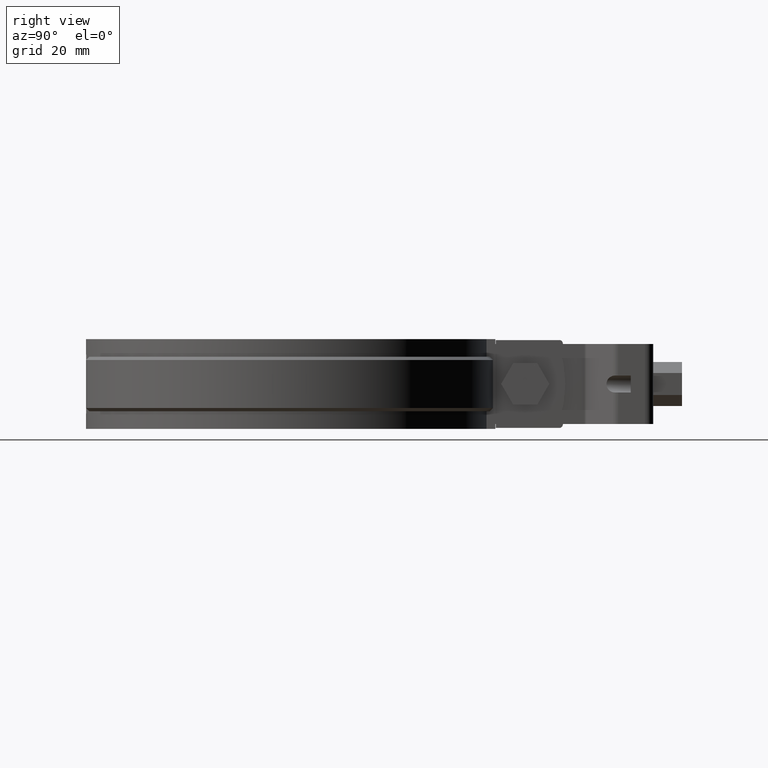
[diagram: clean part render]
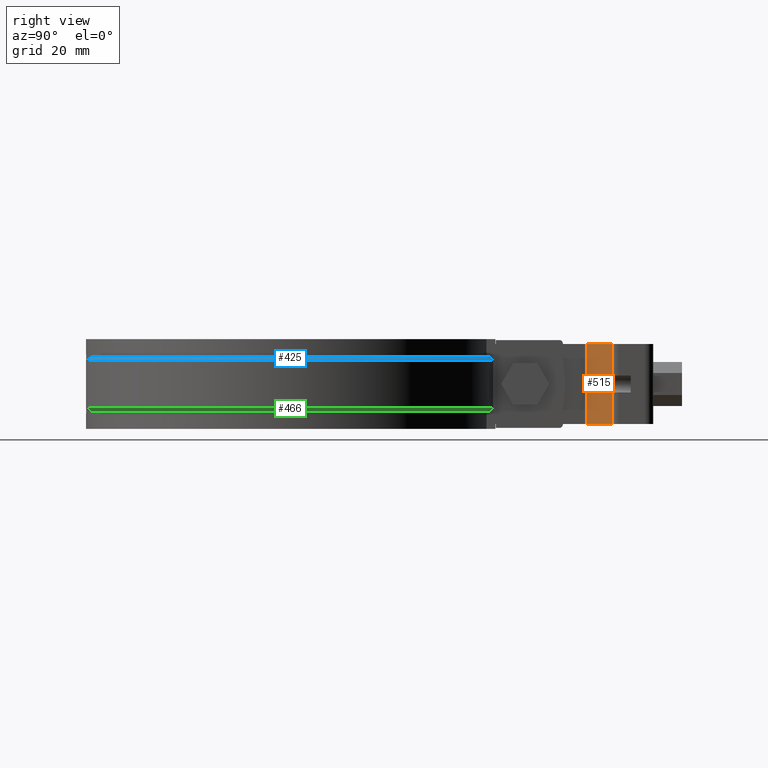
[diagram: same view with three faces highlighted in distinct colors, each labeled with its STEP entity id]
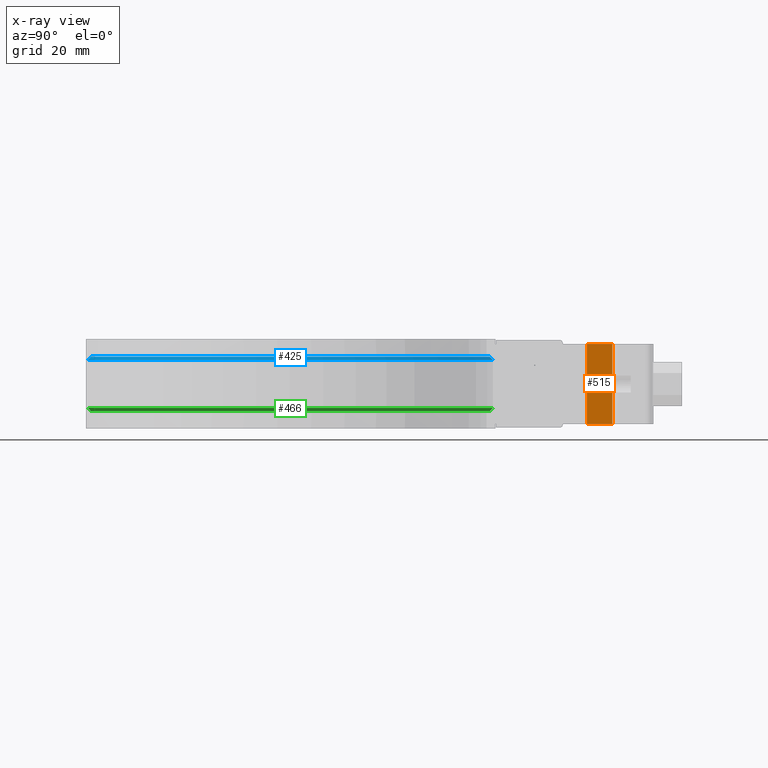
[diagram: x-ray of the same camera — body ghosted, the three highlighted faces saturated]
A machine part, right view with three faces highlighted in distinct colors.
The next image is the same camera in x-ray (body ghosted, the three faces saturated) — at least one of them is partly hidden behind the body in this view.
Their STEP definitions:

[orange] entity #515 — the highlighted planar face has unit normal (0.6983, -0.7158, 0).
#515 = ADVANCED_FACE( '', ( #1013 ), #1014, .T. );
#1013 = FACE_OUTER_BOUND( '', #2270, .T. );
#1014 = PLANE( '', #2271 );
#2270 = EDGE_LOOP( '', ( #4597, #4598, #4599, #4600, #4601, #4602 ) );
#2271 = AXIS2_PLACEMENT_3D( '', #4603, #4604, #4605 );
#4597 = ORIENTED_EDGE( '', *, *, #6400, .T. );
#4598 = ORIENTED_EDGE( '', *, *, #6480, .F. );
#4599 = ORIENTED_EDGE( '', *, *, #6412, .T. );
#4600 = ORIENTED_EDGE( '', *, *, #6421, .F. );
#4601 = ORIENTED_EDGE( '', *, *, #6368, .F. );
#4602 = ORIENTED_EDGE( '', *, *, #6481, .F. );
#4603 = CARTESIAN_POINT( '', ( 3.90167616445234, 94.2571201598930, 12.4999999991308 ) );
#4604 = DIRECTION( '', ( 0.698323835530682, -0.715781964518328, 5.28390761934007E-012 ) );
#4605 = DIRECTION( '', ( 0.000000000000000, -7.38200720507924E-012, -1.00000000000000 ) );
#6368 = EDGE_CURVE( '', #7502, #7504, #7505, .F. );
#6400 = EDGE_CURVE( '', #7566, #7564, #7567, .T. );
#6412 = EDGE_CURVE( '', #7588, #7589, #7590, .F. );
#6421 = EDGE_CURVE( '', #7504, #7589, #7605, .T. );
#6480 = EDGE_CURVE( '', #7588, #7564, #7689, .T. );
#6481 = EDGE_CURVE( '', #7566, #7502, #7690, .T. );
#7502 = VERTEX_POINT( '', #10909 );
#7504 = VERTEX_POINT( '', #10911 );
#7505 = LINE( '', #10912, #10913 );
#7564 = VERTEX_POINT( '', #10989 );
#7566 = VERTEX_POINT( '', #10991 );
#7567 = LINE( '', #10992, #10993 );
#7588 = VERTEX_POINT( '', #11020 );
#7589 = VERTEX_POINT( '', #11021 );
#7590 = ELLIPSE( '', #11022, 3.70224472166266, 2.64999999999997 );
#7605 = LINE( '', #11056, #11057 );
#7689 = LINE( '', #11213, #11214 );
#7690 = LINE( '', #11215, #11216 );
#10909 = CARTESIAN_POINT( '', ( 3.30167616445248, 93.6717543333033, 12.4999999991349 ) );
#10911 = CARTESIAN_POINT( '', ( 11.4656419723602, 101.636598655633, 12.4999999990788 ) );
#10912 = CARTESIAN_POINT( '', ( 5.72823783053747, 96.0391314590352, 12.4999999991183 ) );
#10913 = VECTOR( '', #12769, 1000.00000000000 );
#10989 = CARTESIAN_POINT( '', ( 11.4656419723644, 101.636598655452, -12.5000000009212 ) );
#10991 = CARTESIAN_POINT( '', ( 3.30167616445671, 93.6717543331228, -12.5000000008651 ) );
#10992 = CARTESIAN_POINT( '', ( 3.90167616445657, 94.2571201597126, -12.5000000008692 ) );
#10993 = VECTOR( '', #12829, 1000.00000000000 );
#11020 = CARTESIAN_POINT( '', ( 11.4656419723628, 101.636598655524, -2.53126104721945 ) );
#11021 = CARTESIAN_POINT( '', ( 11.4656419723620, 101.636598655561, 2.53126104537715 ) );
#11022 = AXIS2_PLACEMENT_3D( '', #12851, #12852, #12853 );
#11056 = CARTESIAN_POINT( '', ( 11.4656419723602, 101.636598655633, 12.4999999990788 ) );
#11057 = VECTOR( '', #12866, 1000.00000000000 );
#11213 = CARTESIAN_POINT( '', ( 11.4656419723602, 101.636598655633, 12.4999999990788 ) );
#11214 = VECTOR( '', #12951, 1000.00000000000 );
#11215 = CARTESIAN_POINT( '', ( 3.30167616445248, 93.6717543333033, 12.4999999991349 ) );
#11216 = VECTOR( '', #12952, 1000.00000000000 );
#12769 = DIRECTION( '', ( -0.715781964518328, -0.698323835530682, 4.91890702135917E-012 ) );
#12829 = DIRECTION( '', ( 0.715781964518328, 0.698323835530682, -4.91890702135917E-012 ) );
#12851 = CARTESIAN_POINT( '', ( 12.2499999999828, 102.401825964176, -9.26553833657811E-010 ) );
#12852 = DIRECTION( '', ( 0.698323835530682, -0.715781964518328, 5.28390761934007E-012 ) );
#12853 = DIRECTION( '', ( -0.715781964518328, -0.698323835530682, 4.91890702135917E-012 ) );
#12866 = DIRECTION( '', ( 1.69013704295889E-013, -7.21711579387894E-012, -1.00000000000000 ) );
#12951 = DIRECTION( '', ( 1.69013704295889E-013, -7.21711579387894E-012, -1.00000000000000 ) );
#12952 = DIRECTION( '', ( -1.69074934613580E-013, 7.21705605698639E-012, 1.00000000000000 ) );

[blue] entity #425 — the highlighted conical surface has half-angle 45 deg.
#425 = ADVANCED_FACE( '', ( #824 ), #825, .T. );
#824 = FACE_OUTER_BOUND( '', #1895, .T. );
#825 = CONICAL_SURFACE( '', #1896, 64.6500000000000, 0.785398163397450 );
#1895 = EDGE_LOOP( '', ( #3809, #3810, #3811, #3812 ) );
#1896 = AXIS2_PLACEMENT_3D( '', #3813, #3814, #3815 );
#3809 = ORIENTED_EDGE( '', *, *, #6236, .F. );
#3810 = ORIENTED_EDGE( '', *, *, #6237, .F. );
#3811 = ORIENTED_EDGE( '', *, *, #6238, .F. );
#3812 = ORIENTED_EDGE( '', *, *, #6239, .F. );
#3813 = CARTESIAN_POINT( '', ( 4.33680868994202E-015, 5.55111512312578E-014, 7.50000000000000 ) );
#3814 = DIRECTION( '', ( 0.000000000000000, 0.000000000000000, -1.00000000000000 ) );
#3815 = DIRECTION( '', ( -1.00000000000000, 0.000000000000000, 0.000000000000000 ) );
#6236 = EDGE_CURVE( '', #7295, #7296, #7297, .F. );
#6237 = EDGE_CURVE( '', #7298, #7295, #7299, .T. );
#6238 = EDGE_CURVE( '', #7300, #7298, #7301, .T. );
#6239 = EDGE_CURVE( '', #7296, #7300, #7302, .T. );
#7295 = VERTEX_POINT( '', #10511 );
#7296 = VERTEX_POINT( '', #10512 );
#7297 = B_SPLINE_CURVE_WITH_KNOTS( '', 3, ( #10513, #10514, #10515, #10516 ), .UNSPECIFIED., .F., .F., ( 4, 4 ), ( 707.015549679056, 707.016967009631 ), .UNSPECIFIED. );
#7298 = VERTEX_POINT( '', #10517 );
#7299 = CIRCLE( '', #10518, 63.6500000000000 );
#7300 = VERTEX_POINT( '', #10519 );
#7301 = LINE( '', #10520, #10521 );
#7302 = CIRCLE( '', #10522, 64.6500000000000 );
#10511 = CARTESIAN_POINT( '', ( 6.00000000000001, 63.3665724179556, 8.50000000000000 ) );
#10512 = CARTESIAN_POINT( '', ( 6.00000000000001, 64.3709756023630, 7.50000000000000 ) );
#10513 = CARTESIAN_POINT( '', ( 6.00000000000001, 64.3709756023961, 7.49999999996705 ) );
#10514 = CARTESIAN_POINT( '', ( 6.00000000000001, 64.0361859211582, 7.83334475484544 ) );
#10515 = CARTESIAN_POINT( '', ( 6.00000000000001, 63.7013850392701, 8.16667826842152 ) );
#10516 = CARTESIAN_POINT( '', ( 6.00000000000001, 63.3665724179738, 8.49999999998187 ) );
#10517 = CARTESIAN_POINT( '', ( 17.8834198706277, -61.0860523665659, 8.50000000000000 ) );
#10518 = AXIS2_PLACEMENT_3D( '', #12564, #12565, #12566 );
#10519 = CARTESIAN_POINT( '', ( 18.1643848332456, -62.0457703927492, 7.50000000000000 ) );
#10520 = CARTESIAN_POINT( '', ( 18.1643848332456, -62.0457703927492, 7.50000000000000 ) );
#10521 = VECTOR( '', #12567, 1000.00000000000 );
#10522 = AXIS2_PLACEMENT_3D( '', #12568, #12569, #12570 );
#12564 = CARTESIAN_POINT( '', ( 4.33680868994202E-015, 5.55111512312578E-014, 8.50000000000000 ) );
#12565 = DIRECTION( '', ( 0.000000000000000, 0.000000000000000, 1.00000000000000 ) );
#12566 = DIRECTION( '', ( 1.00000000000000, 0.000000000000000, 0.000000000000000 ) );
#12567 = DIRECTION( '', ( -0.198672230342925, 0.678623124341169, 0.707106781186546 ) );
#12568 = CARTESIAN_POINT( '', ( 4.33680868994202E-015, 5.55111512312578E-014, 7.50000000000000 ) );
#12569 = DIRECTION( '', ( 0.000000000000000, 0.000000000000000, -1.00000000000000 ) );
#12570 = DIRECTION( '', ( -1.00000000000000, 0.000000000000000, 0.000000000000000 ) );

[green] entity #466 — the highlighted conical surface has half-angle 45 deg.
#466 = ADVANCED_FACE( '', ( #908 ), #909, .T. );
#908 = FACE_OUTER_BOUND( '', #2165, .T. );
#909 = CONICAL_SURFACE( '', #2166, 63.6500000000000, 0.785398163397449 );
#2165 = EDGE_LOOP( '', ( #4164, #4165, #4166, #4167 ) );
#2166 = AXIS2_PLACEMENT_3D( '', #4168, #4169, #4170 );
#4164 = ORIENTED_EDGE( '', *, *, #6336, .F. );
#4165 = ORIENTED_EDGE( '', *, *, #6339, .F. );
#4166 = ORIENTED_EDGE( '', *, *, #6340, .F. );
#4167 = ORIENTED_EDGE( '', *, *, #6322, .F. );
#4168 = CARTESIAN_POINT( '', ( 4.33680868994202E-015, 5.55111512312578E-014, -8.50000000000000 ) );
#4169 = DIRECTION( '', ( 0.000000000000000, 0.000000000000000, 1.00000000000000 ) );
#4170 = DIRECTION( '', ( 1.00000000000000, 0.000000000000000, 0.000000000000000 ) );
#6322 = EDGE_CURVE( '', #7430, #7426, #7432, .F. );
#6336 = EDGE_CURVE( '', #7450, #7430, #7452, .F. );
#6339 = EDGE_CURVE( '', #7455, #7450, #7456, .T. );
#6340 = EDGE_CURVE( '', #7426, #7455, #7457, .T. );
#7426 = VERTEX_POINT( '', #10801 );
#7430 = VERTEX_POINT( '', #10805 );
#7432 = CIRCLE( '', #10808, 63.6500000000000 );
#7450 = VERTEX_POINT( '', #10834 );
#7452 = B_SPLINE_CURVE_WITH_KNOTS( '', 3, ( #10837, #10838, #10839, #10840 ), .UNSPECIFIED., .F., .F., ( 4, 4 ), ( 707.190169384483, 707.191599626609 ), .UNSPECIFIED. );
#7455 = VERTEX_POINT( '', #10845 );
#7456 = CIRCLE( '', #10846, 64.6500000000000 );
#7457 = LINE( '', #10847, #10848 );
#10801 = CARTESIAN_POINT( '', ( 17.8834198706277, -61.0860523665659, -8.50000000000000 ) );
#10805 = CARTESIAN_POINT( '', ( 6.00000000000001, 63.3665724179556, -8.50000000000000 ) );
#10808 = AXIS2_PLACEMENT_3D( '', #12690, #12691, #12692 );
#10834 = CARTESIAN_POINT( '', ( 6.00000000000001, 64.3709756023630, -7.49999999999999 ) );
#10837 = CARTESIAN_POINT( '', ( 6.00000000000001, 63.3665724179771, -8.49999999997853 ) );
#10838 = CARTESIAN_POINT( '', ( 6.00000000000001, 63.7013850001556, -8.16667830736181 ) );
#10839 = CARTESIAN_POINT( '', ( 6.00000000000001, 64.0361858826512, -7.83334479318620 ) );
#10840 = CARTESIAN_POINT( '', ( 6.00000000000001, 64.3709756023910, -7.49999999997203 ) );
#10845 = CARTESIAN_POINT( '', ( 18.1643848332456, -62.0457703927492, -7.49999999999999 ) );
#10846 = AXIS2_PLACEMENT_3D( '', #12716, #12717, #12718 );
#10847 = CARTESIAN_POINT( '', ( 17.8834198706277, -61.0860523665659, -8.50000000000000 ) );
#10848 = VECTOR( '', #12719, 1000.00000000000 );
#12690 = CARTESIAN_POINT( '', ( 4.33680868994202E-015, 5.55111512312578E-014, -8.50000000000000 ) );
#12691 = DIRECTION( '', ( 0.000000000000000, 0.000000000000000, 1.00000000000000 ) );
#12692 = DIRECTION( '', ( 1.00000000000000, 0.000000000000000, 0.000000000000000 ) );
#12716 = CARTESIAN_POINT( '', ( 4.33680868994202E-015, 5.55111512312578E-014, -7.49999999999999 ) );
#12717 = DIRECTION( '', ( 0.000000000000000, 0.000000000000000, 1.00000000000000 ) );
#12718 = DIRECTION( '', ( 1.00000000000000, 0.000000000000000, 0.000000000000000 ) );
#12719 = DIRECTION( '', ( 0.198672230342924, -0.678623124341163, 0.707106781186552 ) );